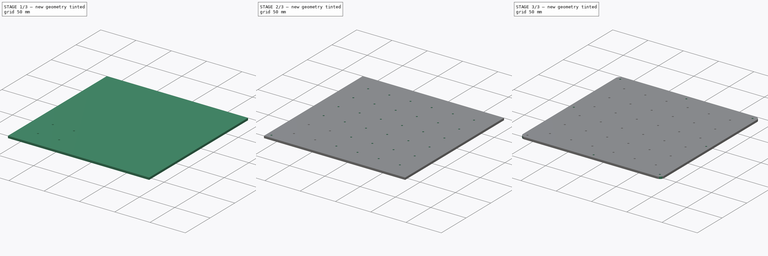
[diagram: build sequence overview — one tinted view per stage of 3, left to right]
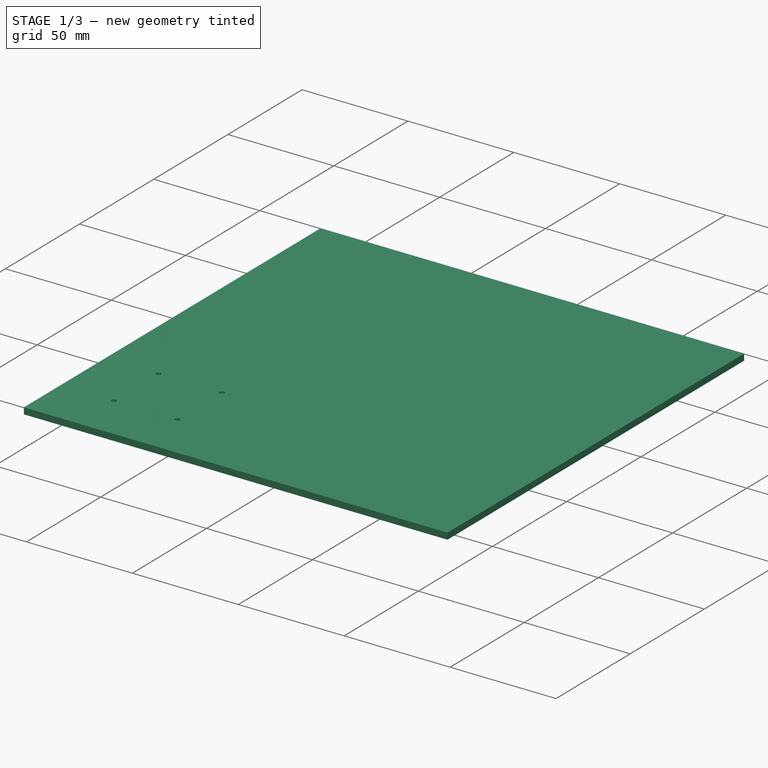
[diagram: stage 1 of 3 — iso view after this stage's code; geometry added in this stage tinted green]
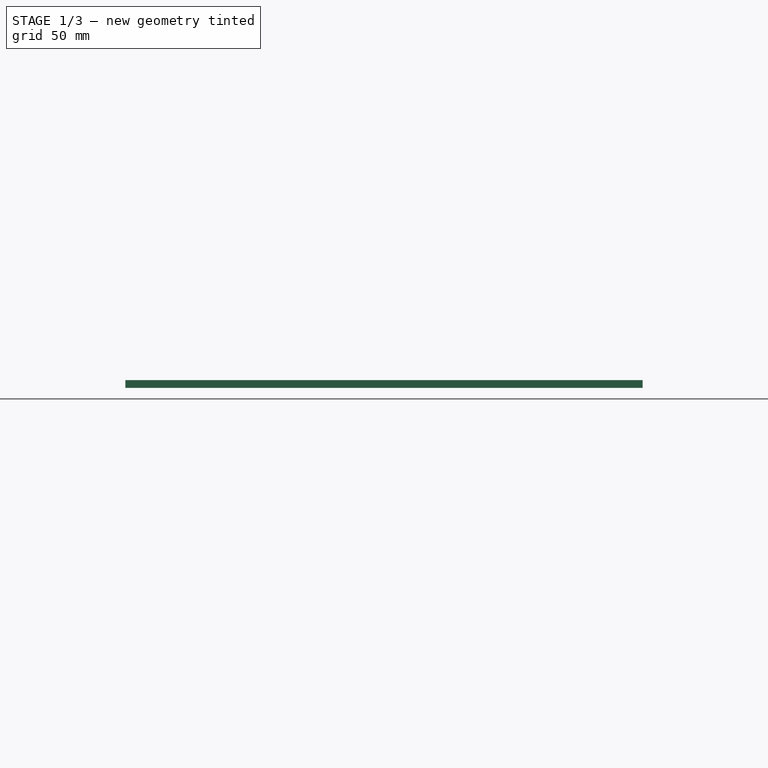
[diagram: stage 1 of 3 — front view after this stage's code; geometry added in this stage tinted green]
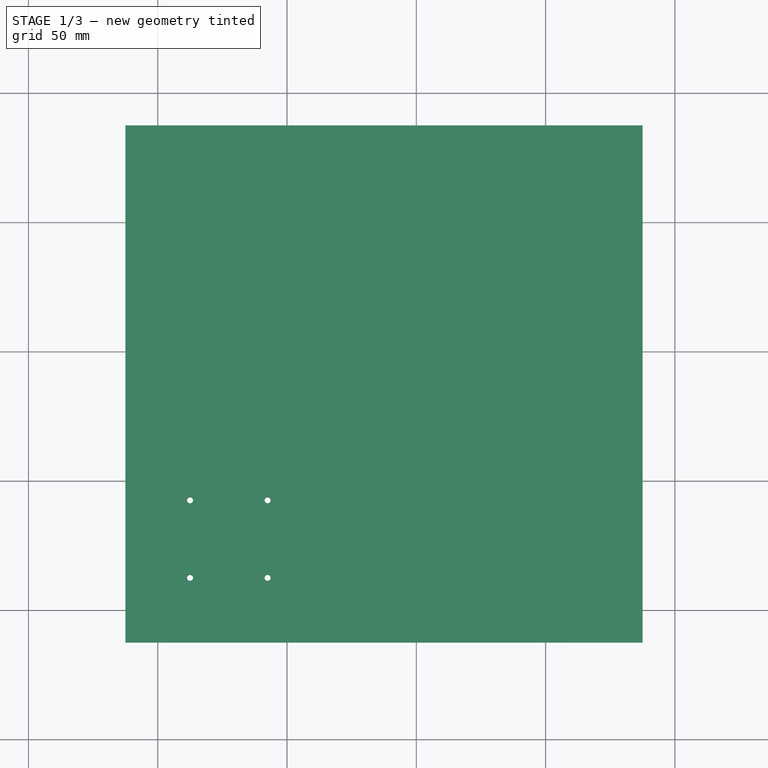
[diagram: stage 1 of 3 — top view after this stage's code; geometry added in this stage tinted green]
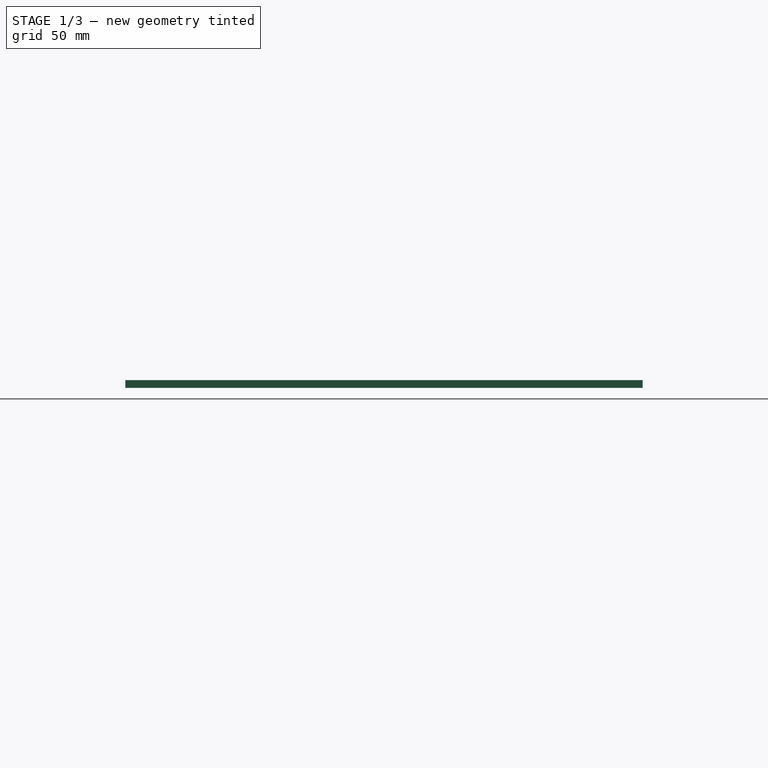
[diagram: stage 1 of 3 — right view after this stage's code; geometry added in this stage tinted green]
FCSTD DOCUMENT  (FreeCAD 0.20R29177 (Git))
Label: Bodenplatte
License: All rights reserved
LicenseURL: http://en.wikipedia.org/wiki/All_rights_reserved
objects: Sketcher::SketchObject×3, PartDesign::LinearPattern×3, PartDesign::Pocket×2, PartDesign::MultiTransform×2, Spreadsheet::Sheet×1, PartDesign::Pad×1, PartDesign::PolarPattern×1, PartDesign::Fillet×1, PartDesign::Body×1
note: 18 computed .brp shape members not serialized (recipe doc carries the construction recipe); baked Part::Feature solids carry a one-line shape summary decoded from their .brp

FEATURE [Sketcher::SketchObject] Sketch
  FullyConstrained = true
  MapMode = 5
  Support = -> [XY_Plane]
  expr: Constraints[16] = Spreadsheet.rand
  expr: Constraints[17] = 2 * Spreadsheet.rand + Spreadsheet.num_buttons * Spreadsheet.b_size + (Spreadsheet.num_buttons - 1) * Spreadsheet.b_space
  sketch-geometry (6):
    g0: LineSegment StartX=-12.5 StartY=-12.5 StartZ=0 EndX=187.5 EndY=-12.5 EndZ=0
    g1: LineSegment StartX=187.5 StartY=-12.5 StartZ=0 EndX=187.5 EndY=187.5 EndZ=0
    g2: LineSegment StartX=187.5 StartY=187.5 StartZ=0 EndX=-12.5 EndY=187.5 EndZ=0
    g3: LineSegment StartX=-12.5 StartY=187.5 StartZ=0 EndX=-12.5 EndY=-12.5 EndZ=0
    g4: LineSegment StartX=-12.5 StartY=0 StartZ=0 EndX=0 EndY=0 EndZ=0
    g5: LineSegment StartX=0 StartY=0 StartZ=0 EndX=0 EndY=-12.5 EndZ=0
  constraints (18):
    c: Coincident(g0,g1)
    c: Coincident(g1,g2)
    c: Coincident(g2,g3)
    c: Coincident(g3,g0)
    c: Horizontal(g0)
    c: Horizontal(g2)
    c: Vertical(g1)
    c: Vertical(g3)
    c: Equal(g1,g2)
    c: PointOnObject(g4,g3)
    c: Coincident(g4,g-1)
    c: Coincident(g4,g5)
    c: PointOnObject(g5,g0)
    c: Vertical(g5)
    c: Horizontal(g4)
    c: Equal(g4,g5)
    c: DistanceX(g4,g4) = 12.5
    c: DistanceX(g0,g0) = 200
FEATURE [Spreadsheet::Sheet] Spreadsheet
  cells = A1=Button size; B1(b_size)=10; A2=Button spacing; B2(b_space)=5; A3=Button clearance; B3(b_clear)=0.3; A4=Rand; B4(rand)=12.5; A5=number of buttons; B5(num_buttons)==num_modules * 4; A6=Schraubendurchmesser; B6(d_schraube)=2.3; A7=number of modules; B7(num_modules)=3; A8=Eckenradius; B8(r_ecke)==rand / 2
FEATURE [PartDesign::Pad] Pad
  Direction = (0,0,1)
  Length = 3
  Length2 = 10
  Profile = -> Sketch
  ReferenceAxis = -> Sketch [N_Axis]
  Reversed = true
  Type = 0
FEATURE [Sketcher::SketchObject] Sketch002
  FullyConstrained = true
  MapMode = 5
  Support = -> [XY_Plane]
  expr: Constraints[19] = Spreadsheet.d_schraube
  expr: Constraints[20] = Spreadsheet.b_size + Spreadsheet.b_space / 2
  expr: Constraints[21] = 2 * (Spreadsheet.b_size + Spreadsheet.b_space)
  sketch-geometry (8):
    g0: Circle CenterX=12.5 CenterY=12.5 CenterZ=0 NormalX=0 NormalY=0 NormalZ=1 AngleXU=0 Radius=1.15
    g1: Circle CenterX=12.5 CenterY=42.5 CenterZ=0 NormalX=0 NormalY=0 NormalZ=1 AngleXU=0 Radius=1.15
    g2: Circle CenterX=42.5 CenterY=42.5 CenterZ=0 NormalX=0 NormalY=0 NormalZ=1 AngleXU=0 Radius=1.15
    g3: Circle CenterX=42.5 CenterY=12.5 CenterZ=0 NormalX=0 NormalY=0 NormalZ=1 AngleXU=0 Radius=1.15
    g4: LineSegment StartX=12.5 StartY=12.5 StartZ=0 EndX=12.5 EndY=0 EndZ=0
    g5: LineSegment StartX=12.5 StartY=12.5 StartZ=0 EndX=0 EndY=12.5 EndZ=0
    g6: LineSegment StartX=12.5 StartY=12.5 StartZ=0 EndX=12.5 EndY=42.5 EndZ=0
    g7: LineSegment StartX=12.5 StartY=12.5 StartZ=0 EndX=42.5 EndY=12.5 EndZ=0
  constraints (22):
    c: Equal(g3,g0)
    c: Equal(g0,g2)
    c: Equal(g2,g1)
    c: Horizontal(g0,g3)
    c: Horizontal(g1,g2)
    c: Vertical(g0,g1)
    c: Vertical(g3,g2)
    c: Coincident(g4,g0)
    c: PointOnObject(g4,g-1)
    c: Vertical(g4)
    c: Coincident(g5,g0)
    c: PointOnObject(g5,g-2)
    c: Horizontal(g5)
    c: Coincident(g6,g0)
    c: Coincident(g6,g1)
    c: Coincident(g7,g0)
    c: Coincident(g7,g3)
    c: Equal(g5,g4)
    c: Equal(g7,g6)
    c: Diameter(g2) = 2.3
    c: DistanceX(g5,g5) = 12.5
    c: DistanceX(g7,g7) = 30
FEATURE [PartDesign::Pocket] Pocket001
  BaseFeature = -> Pad
  Direction = (0,0,-1)
  Length = 5
  Length2 = 5
  Profile = -> Sketch002
  ReferenceAxis = -> Sketch002 [N_Axis]
  Type = 1
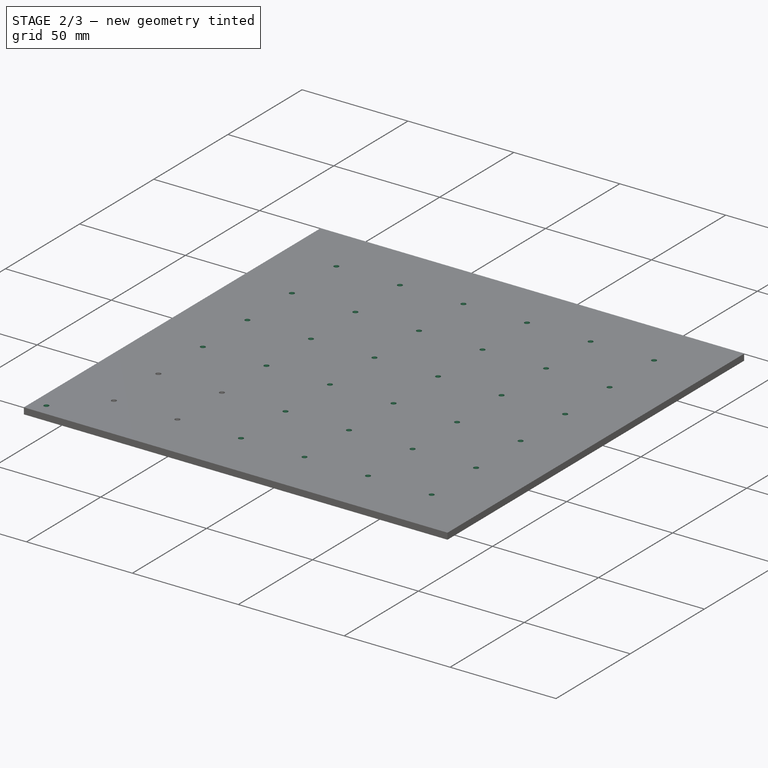
[diagram: stage 2 of 3 — iso view after this stage's code; geometry added in this stage tinted green]
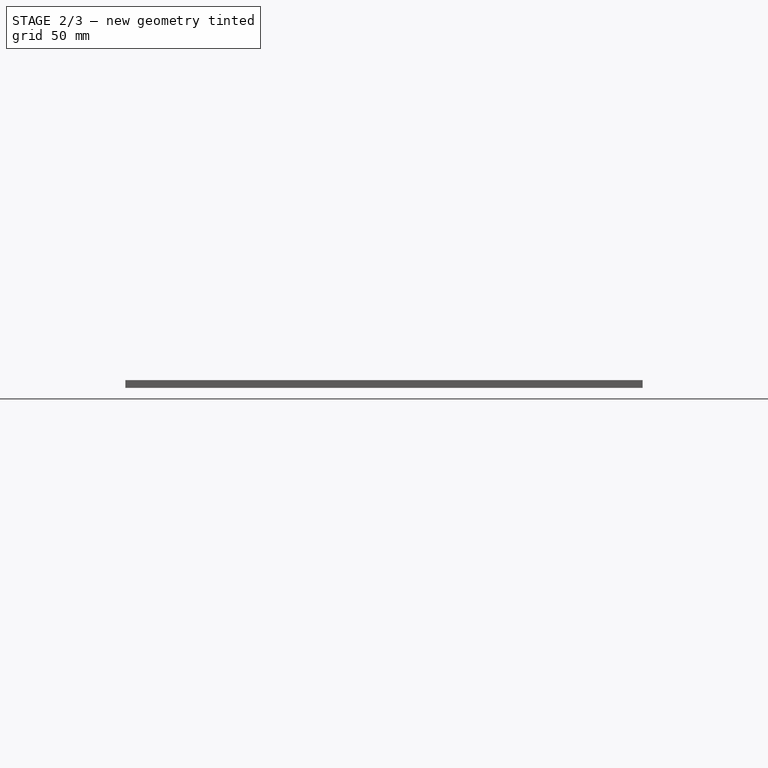
[diagram: stage 2 of 3 — front view after this stage's code; geometry added in this stage tinted green]
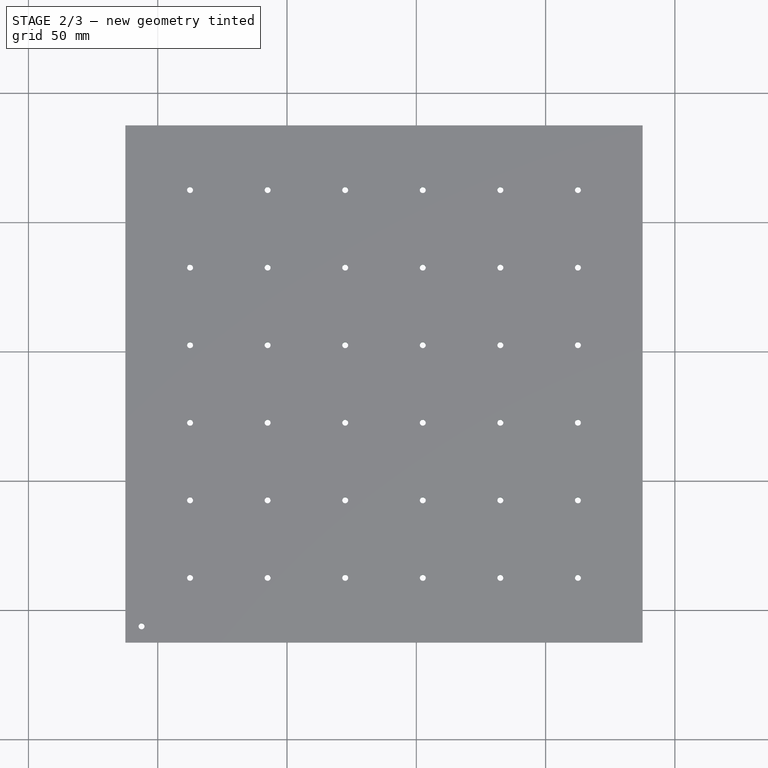
[diagram: stage 2 of 3 — top view after this stage's code; geometry added in this stage tinted green]
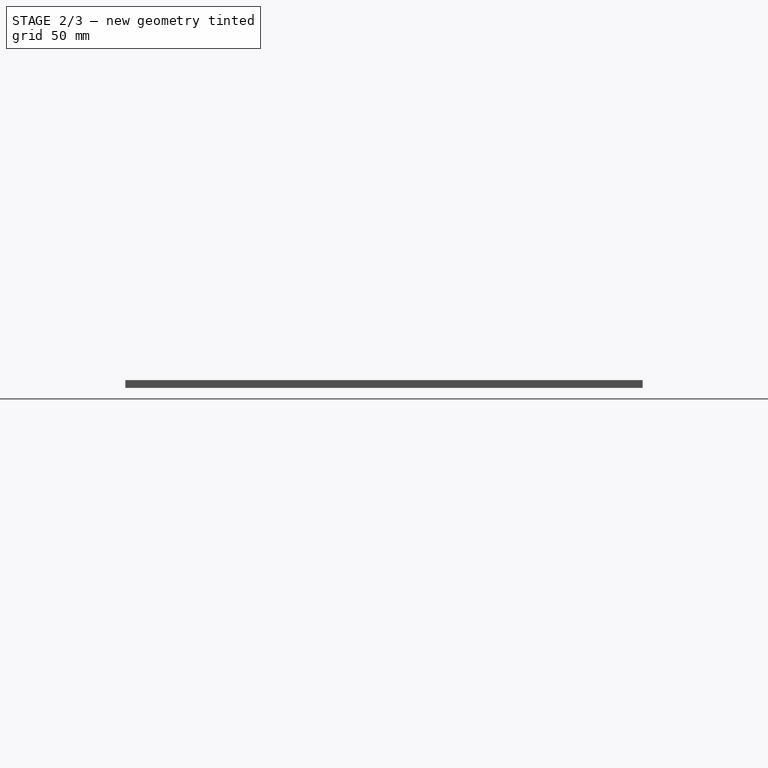
[diagram: stage 2 of 3 — right view after this stage's code; geometry added in this stage tinted green]
FEATURE [PartDesign::LinearPattern] LinearPattern002
  Direction = -> Sketch002 [H_Axis]
  Length = 120
  Occurrences = 3
  expr: Length = (Spreadsheet.num_modules - 1) * 4 * (Spreadsheet.b_size + Spreadsheet.b_space)
  expr: Occurrences = Spreadsheet.num_modules
FEATURE [PartDesign::LinearPattern] LinearPattern003
  Direction = -> Sketch002 [V_Axis]
  Length = 120
  Occurrences = 3
  expr: Length = (Spreadsheet.num_modules - 1) * 4 * (Spreadsheet.b_size + Spreadsheet.b_space)
  expr: Occurrences = Spreadsheet.num_modules
FEATURE [PartDesign::MultiTransform] MultiTransform001
  BaseFeature = -> Pocket001
  Originals = -> [Pocket001]
  Transformations = -> [LinearPattern002,LinearPattern003]
FEATURE [Sketcher::SketchObject] Sketch003
  AttachmentOffset = pos=(87.5,87.5,0) rot=(0,0,1;0rad)
  FullyConstrained = true
  MapMode = 5
  Placement = pos=(87.5,87.5,0) rot=(0,0,1;0rad)
  Support = -> [XY_Plane]
  expr: .AttachmentOffset.Base.x = Spreadsheet.num_modules / 2 * 4 * (Spreadsheet.b_size + Spreadsheet.b_space) - Spreadsheet.b_space / 2
  expr: .AttachmentOffset.Base.y = Spreadsheet.num_modules / 2 * 4 * (Spreadsheet.b_size + Spreadsheet.b_space) - Spreadsheet.b_space / 2
  expr: Constraints[7] = Spreadsheet.d_schraube
  expr: Constraints[8] = Spreadsheet.rand / 2 + Spreadsheet.num_modules / 2 * 4 * (Spreadsheet.b_size + Spreadsheet.b_space) - Spreadsheet.b_space / 2
  sketch-geometry (3):
    g0: Circle CenterX=-93.75 CenterY=-93.75 CenterZ=0 NormalX=0 NormalY=0 NormalZ=1 AngleXU=0 Radius=1.15
    g1: LineSegment StartX=-93.75 StartY=0 StartZ=0 EndX=-93.75 EndY=-93.75 EndZ=0
    g2: LineSegment StartX=-93.75 StartY=-93.75 StartZ=0 EndX=0 EndY=-93.75 EndZ=0
  constraints (9):
    c: PointOnObject(g1,g-1)
    c: Coincident(g1,g0)
    c: Vertical(g1)
    c: Coincident(g2,g0)
    c: PointOnObject(g2,g-2)
    c: Horizontal(g2)
    c: Equal(g2,g1)
    c: Diameter(g0) = 2.3
    c: DistanceX(g2,g2) = 93.75
FEATURE [PartDesign::Pocket] Pocket002
  BaseFeature = -> MultiTransform001
  Direction = (0,0,-1)
  Length = 5
  Length2 = 5
  Profile = -> Sketch003
  ReferenceAxis = -> Sketch003 [N_Axis]
  Type = 1
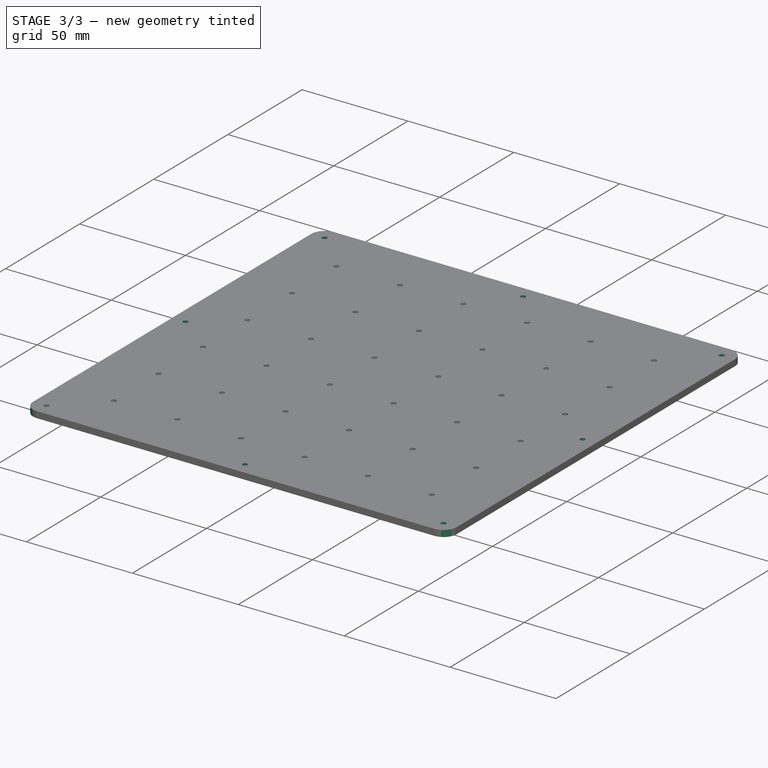
[diagram: stage 3 of 3 — iso view after this stage's code; geometry added in this stage tinted green]
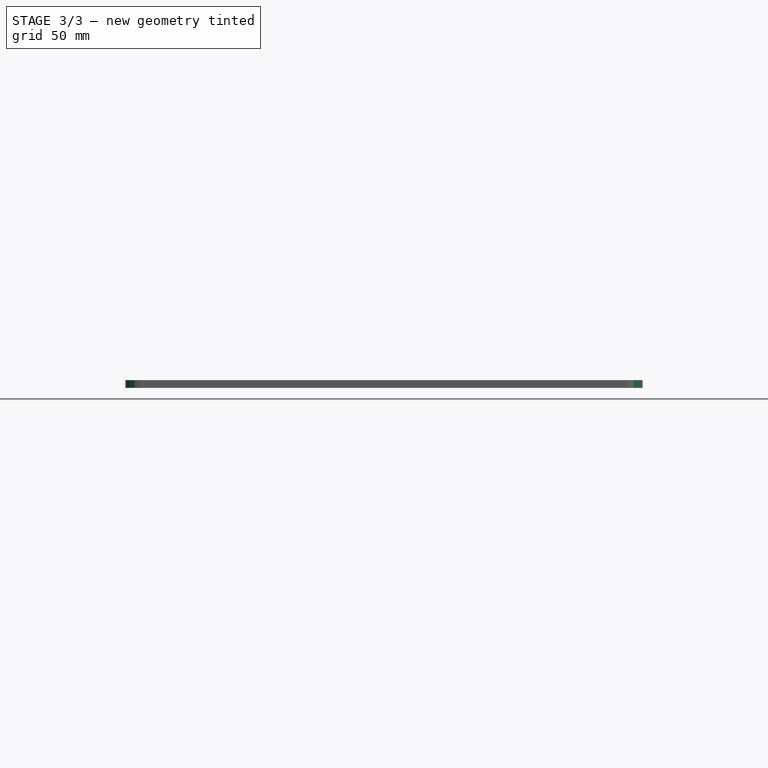
[diagram: stage 3 of 3 — front view after this stage's code; geometry added in this stage tinted green]
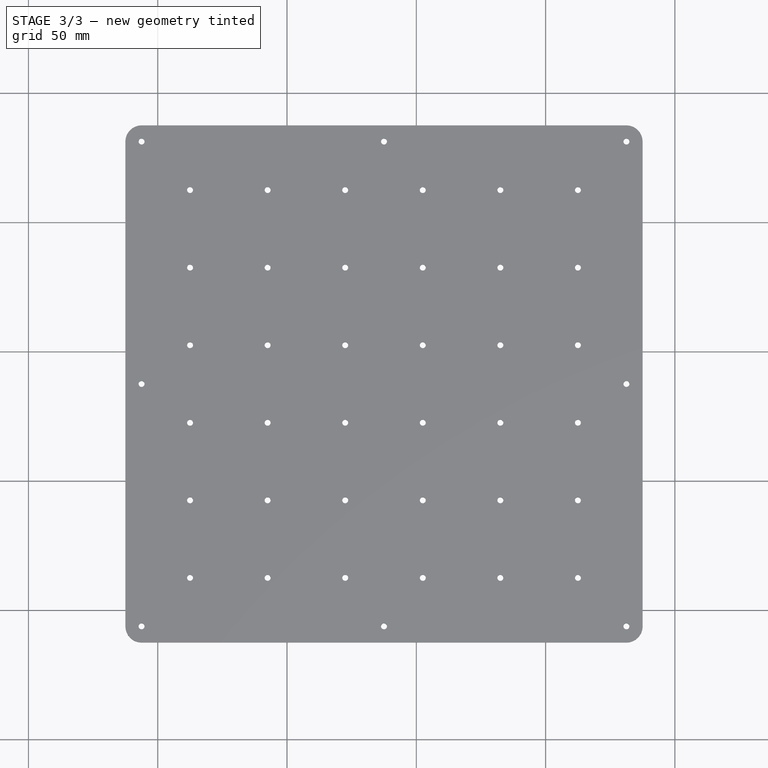
[diagram: stage 3 of 3 — top view after this stage's code; geometry added in this stage tinted green]
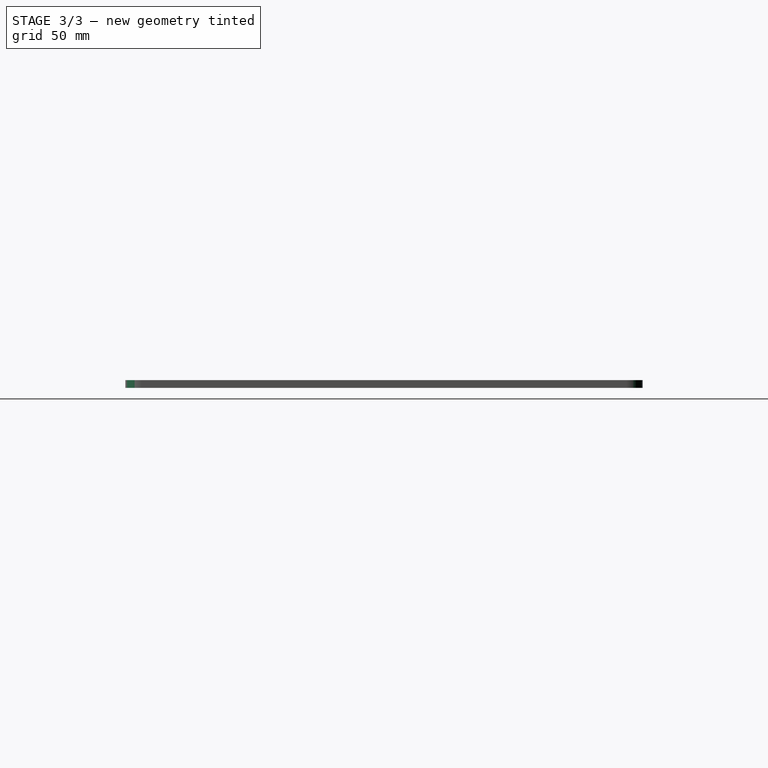
[diagram: stage 3 of 3 — right view after this stage's code; geometry added in this stage tinted green]
FEATURE [PartDesign::LinearPattern] LinearPattern004
  Direction = -> Sketch003 [H_Axis]
  Length = 93.75
  Occurrences = 2
  expr: Length = (Spreadsheet.rand - Spreadsheet.b_space) / 2 + Spreadsheet.num_modules / 2 * 4 * (Spreadsheet.b_size + Spreadsheet.b_space)
FEATURE [PartDesign::PolarPattern] PolarPattern
  Angle = 360
  Axis = -> Sketch003 [N_Axis]
  Occurrences = 4
FEATURE [PartDesign::MultiTransform] MultiTransform002
  BaseFeature = -> Pocket002
  Originals = -> [Pocket002]
  Transformations = -> [LinearPattern004,PolarPattern]
FEATURE [PartDesign::Fillet] Fillet
  Base = -> MultiTransform002 [Edge5,Edge1,Edge2,Edge8]
  BaseFeature = -> MultiTransform002
  Radius = 6.25
  SupportTransform = false
  UseAllEdges = false
  expr: Radius = Spreadsheet.r_ecke
FEATURE [PartDesign::Body] Body  label="Deckplatte"
  Group = -> [Sketch,Pad,Sketch002,Pocket001,MultiTransform001,LinearPattern002,LinearPattern003,Sketch003,Pocket002,MultiTransform002,LinearPattern004,PolarPattern,Fillet]
  Origin = -> Origin
  Tip = -> Fillet
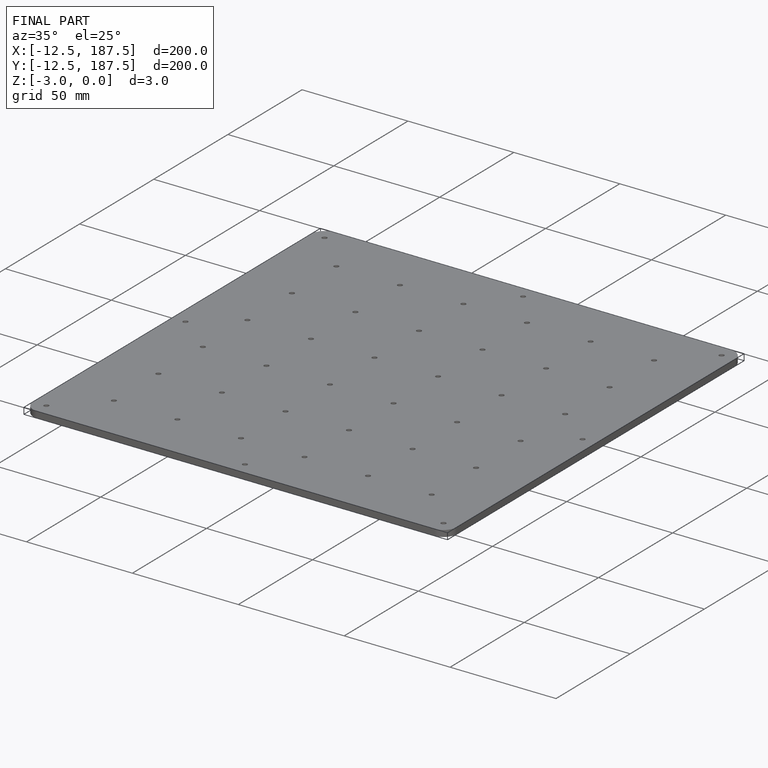
[diagram: finished part — iso view with bounding-box wireframe]
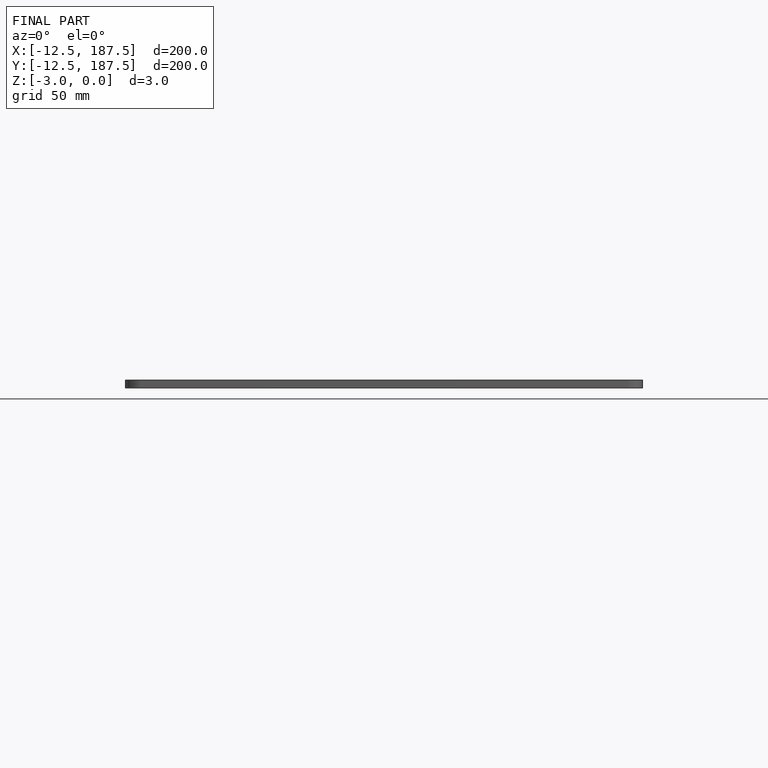
[diagram: finished part — front view with bounding-box wireframe]
